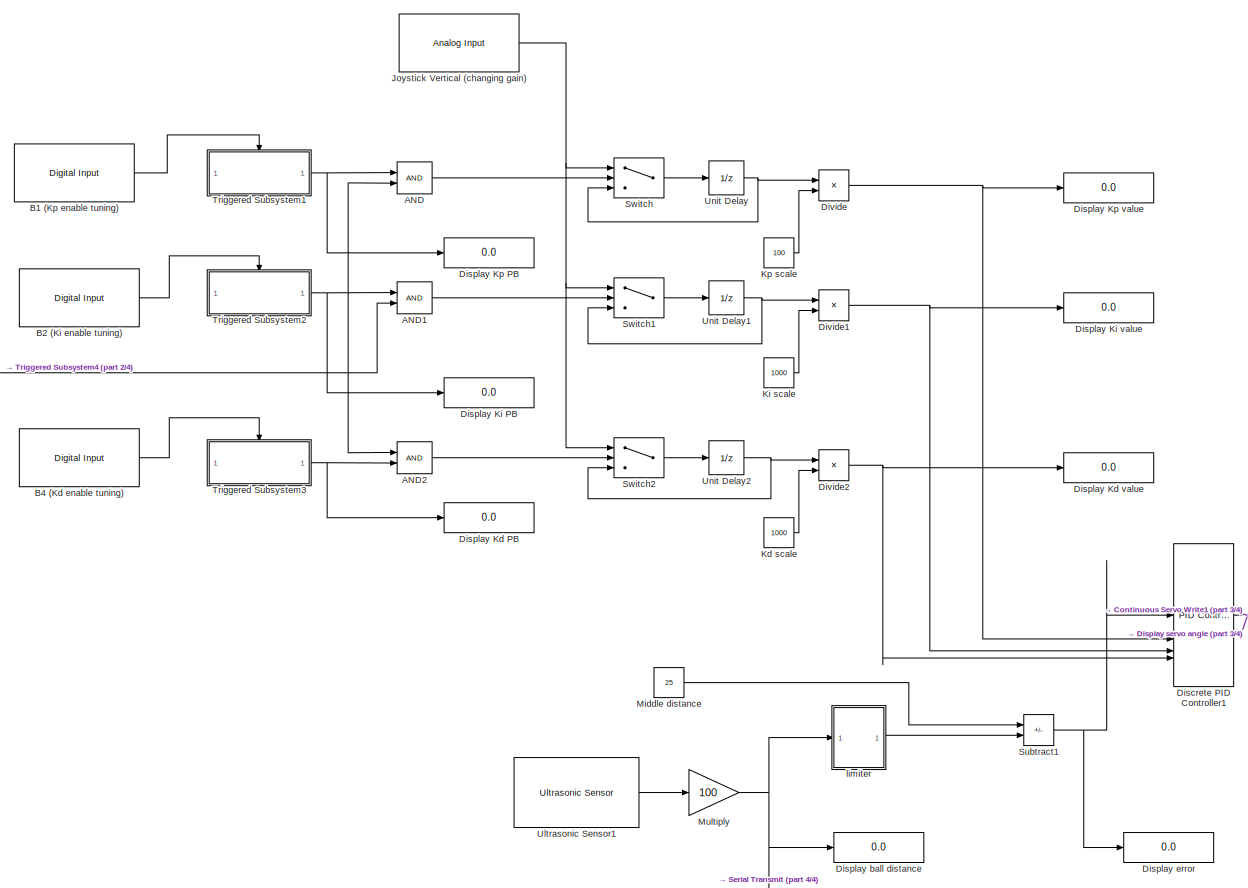
[diagram: root canvas - part 1/4, center side, full height]
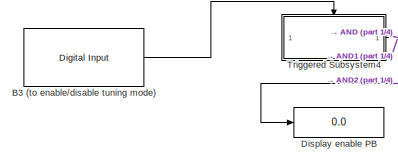
[diagram: root canvas - part 2/4, middle left region]
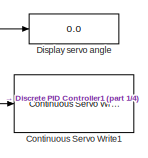
[diagram: root canvas - part 3/4, middle right region]
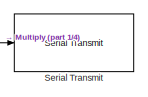
[diagram: root canvas - part 4/4, bottom right region]
MODEL slx_b2a40e61b586
KIND model
CONFIG AbsTol = auto
CONFIG EnableMultiTasking = on
CONFIG FixedStep = 0.01
CONFIG MaxStep = auto
CONFIG MinStep = auto
CONFIG RelTol = 1e-3
CONFIG SampleTimeConstraint = Unconstrained
CONFIG SolverName = FixedStepAuto
CONFIG StartTime = 0.0
CONFIG StopTime = inf
BLOCK [Logic] AND
  AllPortsSameDT = off
  IconShape = distinctive
  OutDataTypeStr = boolean
BLOCK [Logic] AND1
  AllPortsSameDT = off
  IconShape = distinctive
  OutDataTypeStr = boolean
BLOCK [Logic] AND2
  AllPortsSameDT = off
  IconShape = distinctive
  OutDataTypeStr = boolean
BLOCK [Reference] B1 (Kp enable tuning)  REF=arduinolib/Digital Input
  SourceBlock = arduinolib/Digital Input
  SourceType = Arduino Digital Input
BLOCK [Reference] B2 (Ki enable tuning)  REF=arduinolib/Digital Input
  SourceBlock = arduinolib/Digital Input
  SourceType = Arduino Digital Input
BLOCK [Reference] B3 (to enable//disable tuning mode)  REF=arduinolib/Digital Input
  SourceBlock = arduinolib/Digital Input
  SourceType = Arduino Digital Input
BLOCK [Reference] B4 (Kd enable tuning)  REF=arduinolib/Digital Input
  SourceBlock = arduinolib/Digital Input
  SourceType = Arduino Digital Input
BLOCK [Reference] Continuous Servo Write1  REF=arduinolib/Continuous Servo Write
  SourceBlock = arduinolib/Continuous Servo Write
  SourceType = Arduino Continuous Servo Write
BLOCK [Reference] Discrete PID Controller1  REF=slpidlib/PID Controller
  SourceBlock = slpidlib/PID Controller
  SourceType = PID 1dof
BLOCK [Display] Display Kd PB
  Decimation = 1
BLOCK [Display] Display Kd value
  Decimation = 1
BLOCK [Display] Display Ki PB
  Decimation = 1
BLOCK [Display] Display Ki value
  Decimation = 1
BLOCK [Display] Display Kp PB
  Decimation = 1
BLOCK [Display] Display Kp value
  Decimation = 1
BLOCK [Display] Display ball distance
  Decimation = 1
BLOCK [Display] Display enable PB
  Decimation = 1
BLOCK [Display] Display error 
  Decimation = 1
BLOCK [Display] Display servo angle
  Decimation = 1
BLOCK [Product] Divide
  Inputs = */
BLOCK [Product] Divide1
  Inputs = */
BLOCK [Product] Divide2
  Inputs = */
BLOCK [Reference] Joystick Vertical (changing gain)  REF=arduinolib/Analog Input
  SourceBlock = arduinolib/Analog Input
  SourceType = Arduino Analog Input
BLOCK [Constant] Kd scale
  Value = 1000
BLOCK [Constant] Ki scale
  Value = 1000
BLOCK [Constant] Kp scale
  Value = 100
BLOCK [Constant] Middle distance
  Value = 25
BLOCK [Gain] Multiply
  Gain = 100
BLOCK [Reference] Serial Transmit  REF=arduinolib/Serial Transmit
  SourceBlock = arduinolib/Serial Transmit
  SourceType = Arduino Serial Transmit
BLOCK [Sum] Subtract1
  IconShape = rectangular
  Inputs = -+
BLOCK [Switch] Switch
  Criteria = u2 > Threshold
  InputSameDT = off
  SaturateOnIntegerOverflow = off
BLOCK [Switch] Switch1
  Criteria = u2 > Threshold
  InputSameDT = off
  SaturateOnIntegerOverflow = off
BLOCK [Switch] Switch2
  Criteria = u2 > Threshold
  InputSameDT = off
  SaturateOnIntegerOverflow = off
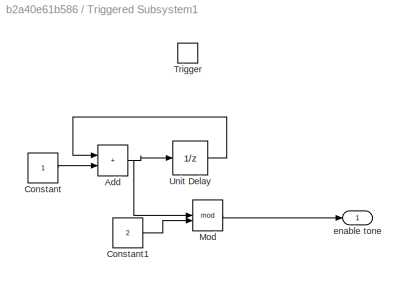
BLOCK [SubSystem] Triggered Subsystem1
  TreatAsAtomicUnit = on
BLOCK [Sum] Triggered Subsystem1/Add
  IconShape = rectangular
BLOCK [Constant] Triggered Subsystem1/Constant
BLOCK [Constant] Triggered Subsystem1/Constant1
  Value = 2
BLOCK [Math] Triggered Subsystem1/Mod
  Operator = mod
BLOCK [TriggerPort] Triggered Subsystem1/Trigger
  StatesWhenEnabling = held
  VariantControl = (inherit)
BLOCK [UnitDelay] Triggered Subsystem1/Unit Delay
  HasFrameUpgradeWarning = on
  SampleTime = -1
BLOCK [Outport] Triggered Subsystem1/enable tone
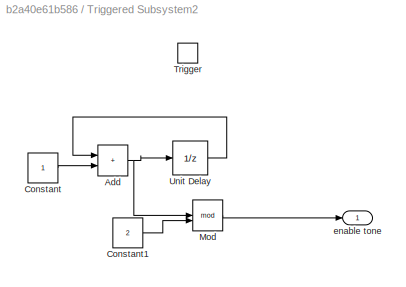
BLOCK [SubSystem] Triggered Subsystem2
  TreatAsAtomicUnit = on
BLOCK [Sum] Triggered Subsystem2/Add
  IconShape = rectangular
BLOCK [Constant] Triggered Subsystem2/Constant
BLOCK [Constant] Triggered Subsystem2/Constant1
  Value = 2
BLOCK [Math] Triggered Subsystem2/Mod
  Operator = mod
BLOCK [TriggerPort] Triggered Subsystem2/Trigger
  StatesWhenEnabling = held
  VariantControl = (inherit)
BLOCK [UnitDelay] Triggered Subsystem2/Unit Delay
  HasFrameUpgradeWarning = on
  SampleTime = -1
BLOCK [Outport] Triggered Subsystem2/enable tone
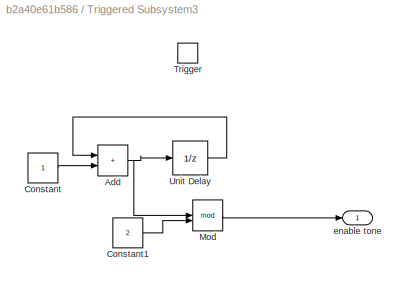
BLOCK [SubSystem] Triggered Subsystem3
  TreatAsAtomicUnit = on
BLOCK [Sum] Triggered Subsystem3/Add
  IconShape = rectangular
BLOCK [Constant] Triggered Subsystem3/Constant
BLOCK [Constant] Triggered Subsystem3/Constant1
  Value = 2
BLOCK [Math] Triggered Subsystem3/Mod
  Operator = mod
BLOCK [TriggerPort] Triggered Subsystem3/Trigger
  StatesWhenEnabling = held
  VariantControl = (inherit)
BLOCK [UnitDelay] Triggered Subsystem3/Unit Delay
  HasFrameUpgradeWarning = on
  SampleTime = -1
BLOCK [Outport] Triggered Subsystem3/enable tone
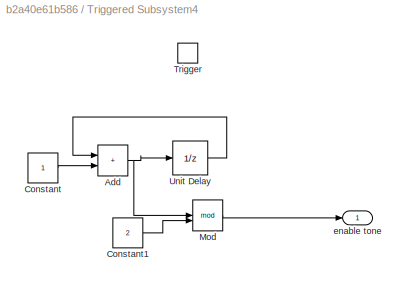
BLOCK [SubSystem] Triggered Subsystem4
  TreatAsAtomicUnit = on
BLOCK [Sum] Triggered Subsystem4/Add
  IconShape = rectangular
BLOCK [Constant] Triggered Subsystem4/Constant
BLOCK [Constant] Triggered Subsystem4/Constant1
  Value = 2
BLOCK [Math] Triggered Subsystem4/Mod
  Operator = mod
BLOCK [TriggerPort] Triggered Subsystem4/Trigger
  StatesWhenEnabling = held
  VariantControl = (inherit)
BLOCK [UnitDelay] Triggered Subsystem4/Unit Delay
  HasFrameUpgradeWarning = on
  SampleTime = -1
BLOCK [Outport] Triggered Subsystem4/enable tone
BLOCK [Reference] Ultrasonic Sensor1  REF=arduinosensorlib/Ultrasonic Sensor
  SourceBlock = arduinosensorlib/Ultrasonic Sensor
  SourceType = Arduino Ultrasonic Sensor
BLOCK [UnitDelay] Unit Delay
  HasFrameUpgradeWarning = on
  SampleTime = -1
BLOCK [UnitDelay] Unit Delay1
  HasFrameUpgradeWarning = on
  SampleTime = -1
BLOCK [UnitDelay] Unit Delay2
  HasFrameUpgradeWarning = on
  SampleTime = -1
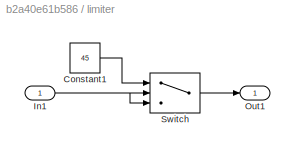
BLOCK [SubSystem] limiter
BLOCK [Constant] limiter/Constant1
  Value = 45
BLOCK [Inport] limiter/In1
BLOCK [Outport] limiter/Out1
BLOCK [Switch] limiter/Switch
  Criteria = u2 > Threshold
  InputSameDT = off
  SaturateOnIntegerOverflow = off
  Threshold = 45
LINE AND1:1 -> Switch1:2
LINE AND2:1 -> Switch2:2
LINE AND:1 -> Switch:2
LINE B1 (Kp enable tuning):1 -> Triggered Subsystem1:trigger
LINE B2 (Ki enable tuning):1 -> Triggered Subsystem2:trigger
LINE B3 (to enable//disable tuning mode):1 -> Triggered Subsystem4:trigger
LINE B4 (Kd enable tuning):1 -> Triggered Subsystem3:trigger
NET Discrete PID Controller1:1 -> Continuous Servo Write1:1, Display servo angle:1
NET Divide1:1 -> Discrete PID Controller1:3, Display Ki value:1
NET Divide2:1 -> Discrete PID Controller1:4, Display Kd value:1
NET Divide:1 -> Discrete PID Controller1:2, Display Kp value:1
NET Joystick Vertical (changing gain):1 -> Switch1:1, Switch2:1, Switch:1
LINE Kd scale:1 -> Divide2:2
LINE Ki scale:1 -> Divide1:2
LINE Kp scale:1 -> Divide:2
LINE Middle distance:1 -> Subtract1:1
NET Multiply:1 -> Display ball distance:1, Serial Transmit:1, limiter:1
NET Subtract1:1 -> Discrete PID Controller1:1, Display error :1
LINE Switch1:1 -> Unit Delay1:1
LINE Switch2:1 -> Unit Delay2:1
LINE Switch:1 -> Unit Delay:1
NET Triggered Subsystem1/Add:1 -> Triggered Subsystem1/Mod:1, Triggered Subsystem1/Unit Delay:1
LINE Triggered Subsystem1/Constant1:1 -> Triggered Subsystem1/Mod:2
LINE Triggered Subsystem1/Constant:1 -> Triggered Subsystem1/Add:2
LINE Triggered Subsystem1/Mod:1 -> Triggered Subsystem1/enable tone:1
LINE Triggered Subsystem1/Unit Delay:1 -> Triggered Subsystem1/Add:1
NET Triggered Subsystem1:1 -> AND:1, Display Kp PB:1
NET Triggered Subsystem2/Add:1 -> Triggered Subsystem2/Mod:1, Triggered Subsystem2/Unit Delay:1
LINE Triggered Subsystem2/Constant1:1 -> Triggered Subsystem2/Mod:2
LINE Triggered Subsystem2/Constant:1 -> Triggered Subsystem2/Add:2
LINE Triggered Subsystem2/Mod:1 -> Triggered Subsystem2/enable tone:1
LINE Triggered Subsystem2/Unit Delay:1 -> Triggered Subsystem2/Add:1
NET Triggered Subsystem2:1 -> AND1:1, Display Ki PB:1
NET Triggered Subsystem3/Add:1 -> Triggered Subsystem3/Mod:1, Triggered Subsystem3/Unit Delay:1
LINE Triggered Subsystem3/Constant1:1 -> Triggered Subsystem3/Mod:2
LINE Triggered Subsystem3/Constant:1 -> Triggered Subsystem3/Add:2
LINE Triggered Subsystem3/Mod:1 -> Triggered Subsystem3/enable tone:1
LINE Triggered Subsystem3/Unit Delay:1 -> Triggered Subsystem3/Add:1
NET Triggered Subsystem3:1 -> AND2:2, Display Kd PB:1
NET Triggered Subsystem4/Add:1 -> Triggered Subsystem4/Mod:1, Triggered Subsystem4/Unit Delay:1
LINE Triggered Subsystem4/Constant1:1 -> Triggered Subsystem4/Mod:2
LINE Triggered Subsystem4/Constant:1 -> Triggered Subsystem4/Add:2
LINE Triggered Subsystem4/Mod:1 -> Triggered Subsystem4/enable tone:1
LINE Triggered Subsystem4/Unit Delay:1 -> Triggered Subsystem4/Add:1
NET Triggered Subsystem4:1 -> AND1:2, AND2:1, AND:2, Display enable PB:1
LINE Ultrasonic Sensor1:1 -> Multiply:1
NET Unit Delay1:1 -> Divide1:1, Switch1:3
NET Unit Delay2:1 -> Divide2:1, Switch2:3
NET Unit Delay:1 -> Divide:1, Switch:3
LINE limiter/Constant1:1 -> limiter/Switch:1
NET limiter/In1:1 -> limiter/Switch:2, limiter/Switch:3
LINE limiter/Switch:1 -> limiter/Out1:1
LINE limiter:1 -> Subtract1:2
note: NET lines group one-source signal fan-out (src -> all destinations, sorted); 1:1 wires keep LINE
